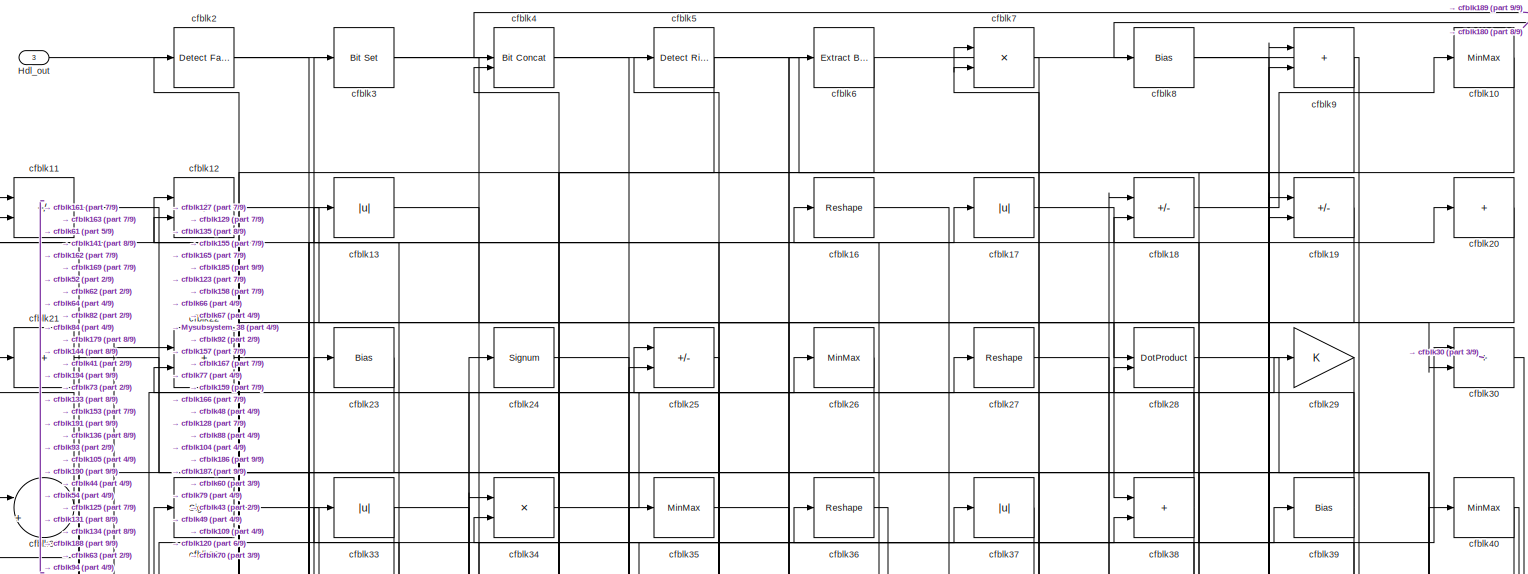
[diagram: root canvas - part 1/9, full width, top band]
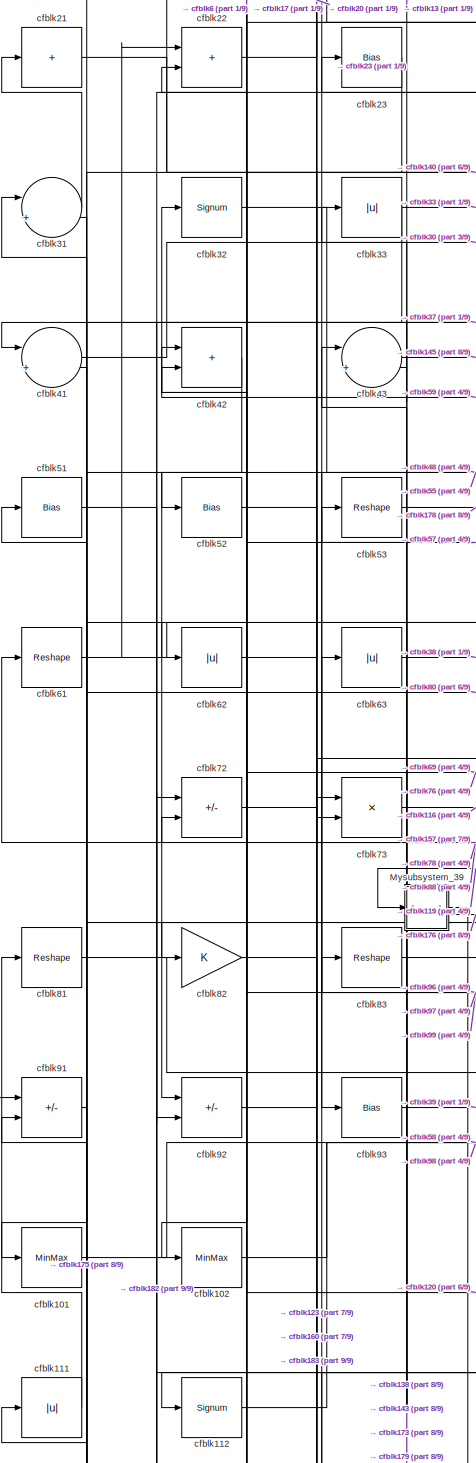
[diagram: root canvas - part 2/9, middle left region]
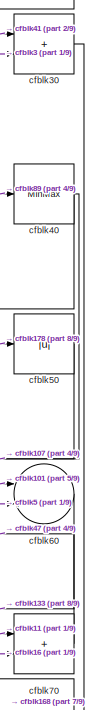
[diagram: root canvas - part 3/9, top right region]
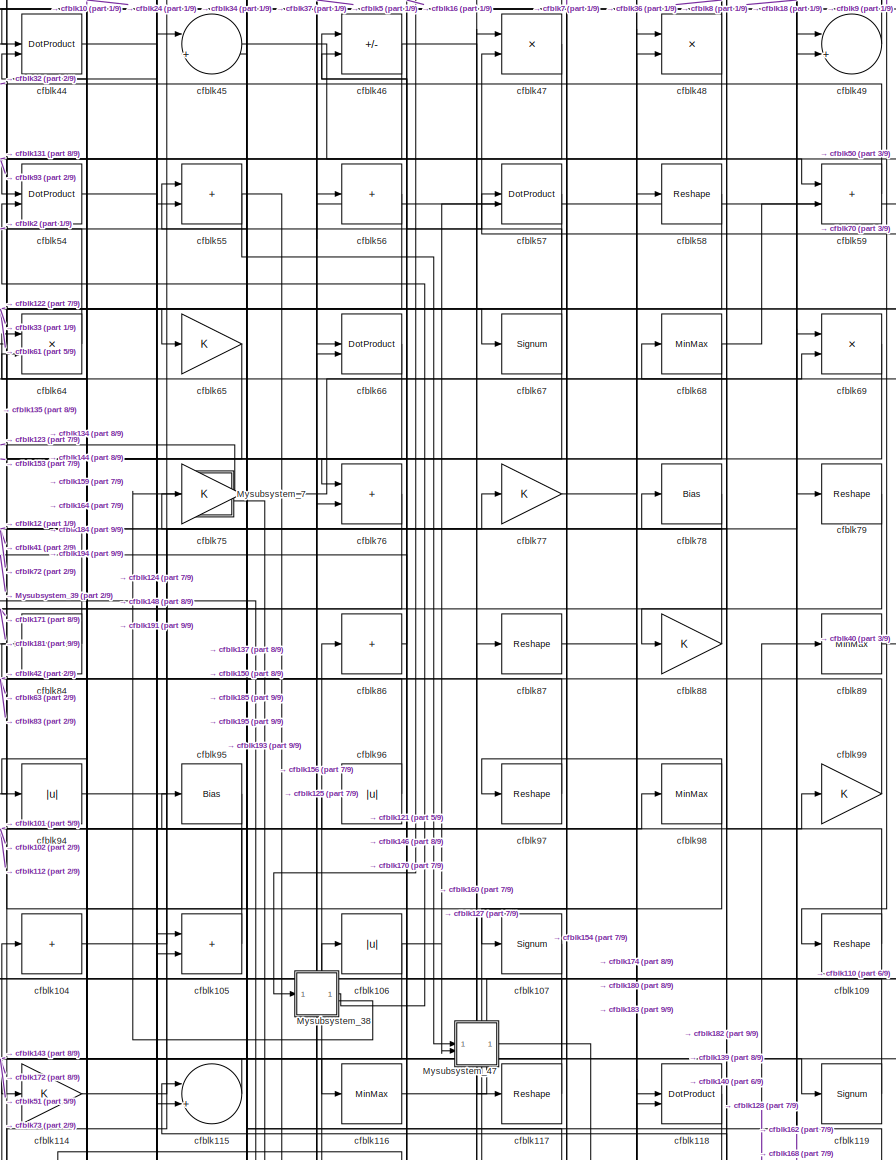
[diagram: root canvas - part 4/9, central region]
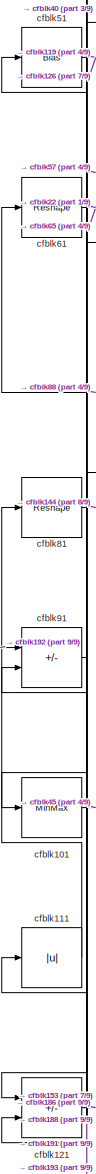
[diagram: root canvas - part 5/9, middle left region]
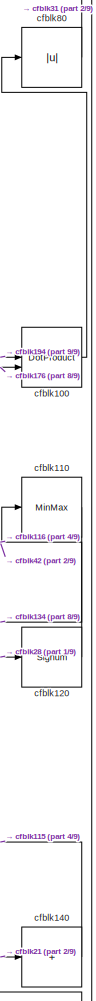
[diagram: root canvas - part 6/9, middle right region]
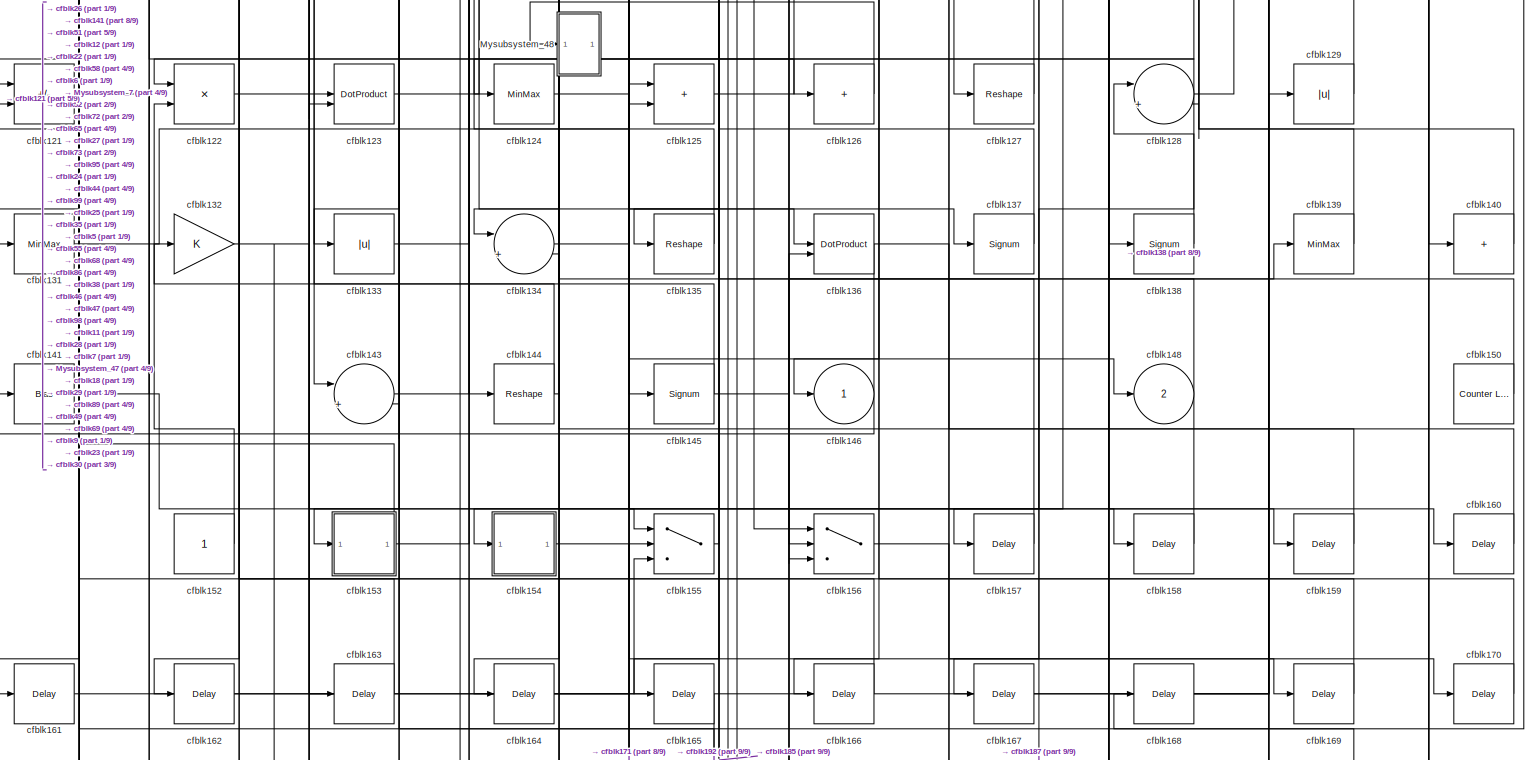
[diagram: root canvas - part 7/9, full width, bottom band]
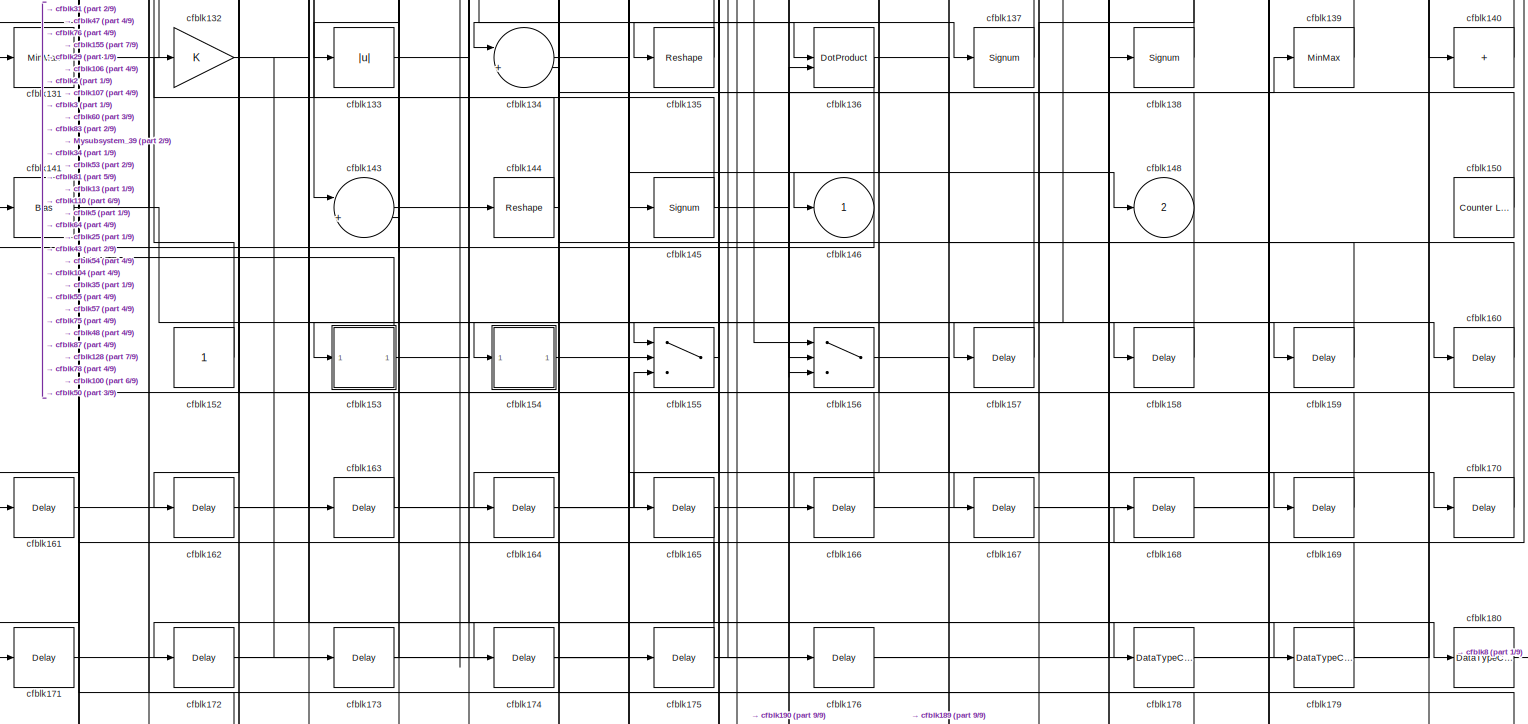
[diagram: root canvas - part 8/9, full width, bottom band]
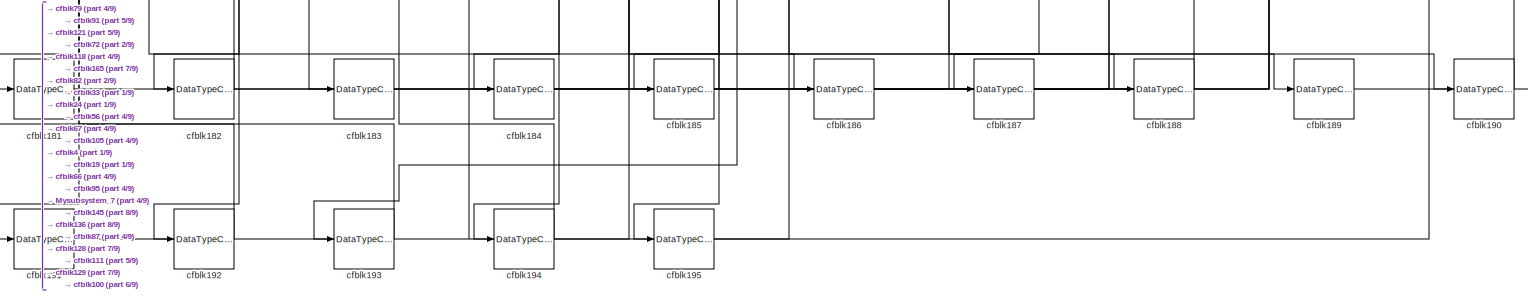
[diagram: root canvas - part 9/9, full width, bottom band]
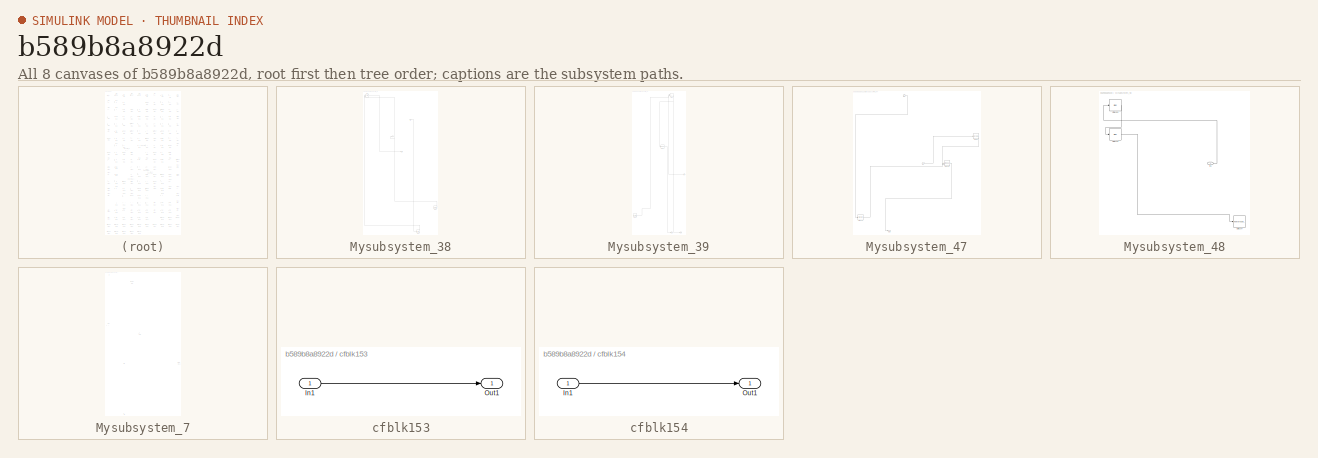
[diagram: thumbnail index - all 8 canvases of the model, root first then tree order]
MODEL slx_b589b8a8922d
KIND model
CONFIG AbsTol = auto
CONFIG EnableMultiTasking = off
CONFIG FixedStep = auto
CONFIG MaxStep = auto
CONFIG MinStep = auto
CONFIG RelTol = 1e-3
CONFIG SampleTimeConstraint = Unconstrained
CONFIG SolverName = VariableStepAuto
CONFIG StartTime = 0.0
CONFIG StopTime = 10.0
BLOCK [Outport] Hdl_out
  OutDataTypeStr = uint8
  Port = 3
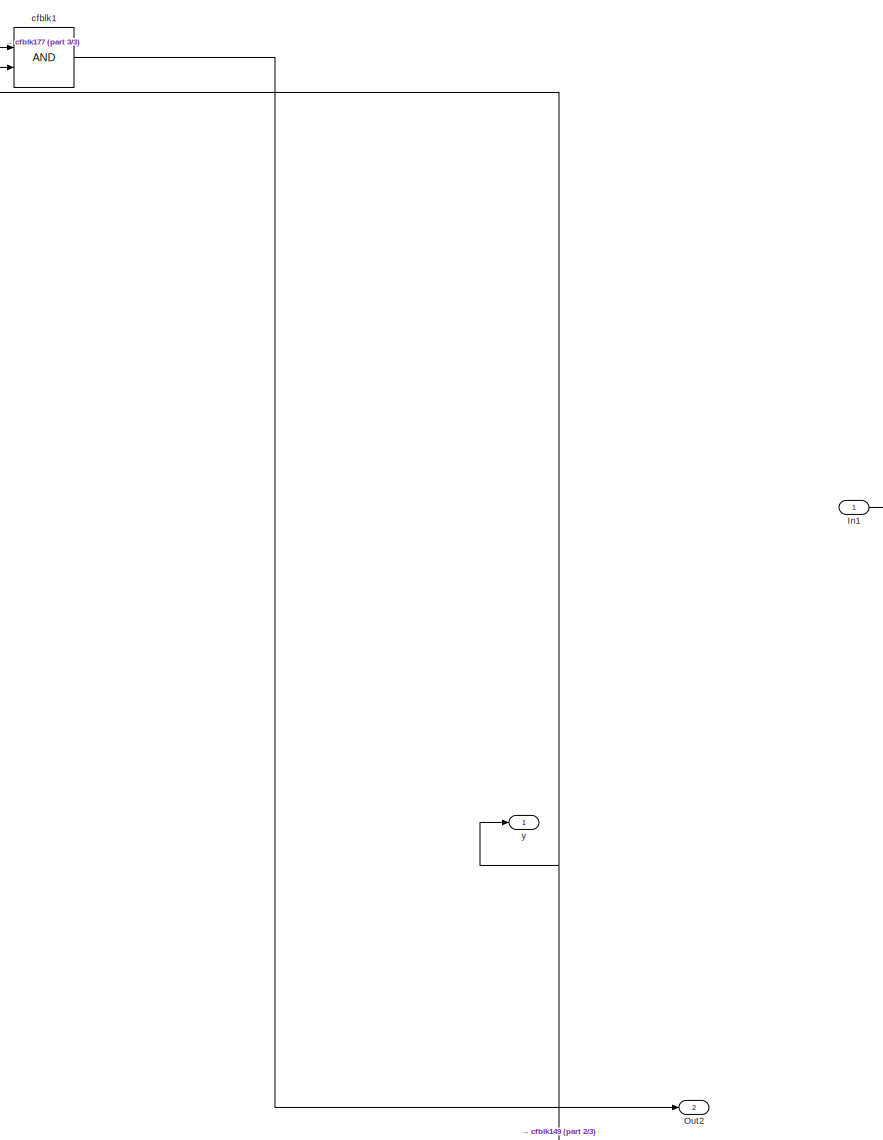
[diagram: Mysubsystem_38 - part 1/3, top center region]
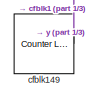
[diagram: Mysubsystem_38 - part 2/3, bottom right region]
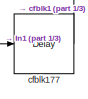
[diagram: Mysubsystem_38 - part 3/3, bottom right region]
BLOCK [SubSystem] Mysubsystem_38
  RTWFcnName = Mysubsystem_38
  RTWFcnNameOpts = User specified
  RTWFileNameOpts = Use function name
  RTWSystemCode = Reusable function
  TreatAsAtomicUnit = on
BLOCK [Inport] Mysubsystem_38/In1
BLOCK [Outport] Mysubsystem_38/Out2
  Port = 2
BLOCK [Logic] Mysubsystem_38/cfblk1
  AllPortsSameDT = off
  OutDataTypeStr = boolean
BLOCK [Reference] Mysubsystem_38/cfblk149  REF=hdlsllib/Sources/Counter
Limited
  SourceBlock = hdlsllib/Sources/Counter\nLimited
  SourceType = Counter Limited
BLOCK [Delay] Mysubsystem_38/cfblk177
  InputPortMap = u0
  SampleTime = 1
BLOCK [Outport] Mysubsystem_38/y
BLOCK [SubSystem] Mysubsystem_39
  RTWFcnName = Mysubsystem_39
  RTWFcnNameOpts = User specified
  RTWFileNameOpts = Use function name
  RTWSystemCode = Reusable function
  TreatAsAtomicUnit = on
BLOCK [Inport] Mysubsystem_39/In1
BLOCK [Outport] Mysubsystem_39/Out1
BLOCK [Outport] Mysubsystem_39/Out2
  Port = 2
BLOCK [Sum] Mysubsystem_39/cfblk15
  IconShape = rectangular
BLOCK [Reference] Mysubsystem_39/cfblk151  REF=hdlsllib/Sources/Counter
Free-Running
  SourceBlock = hdlsllib/Sources/Counter\nFree-Running
  SourceType = Counter Free-Running
BLOCK [Reshape] Mysubsystem_39/cfblk74
BLOCK [SubSystem] Mysubsystem_47
  RTWFcnName = Mysubsystem_47
  RTWFcnNameOpts = User specified
  RTWFileNameOpts = Use function name
  RTWSystemCode = Reusable function
  TreatAsAtomicUnit = on
BLOCK [Inport] Mysubsystem_47/In1
BLOCK [Inport] Mysubsystem_47/In2
  Port = 2
BLOCK [Outport] Mysubsystem_47/Out1
BLOCK [DotProduct] Mysubsystem_47/cfblk108
  OutDataTypeStr = Inherit: Inherit via internal rule
BLOCK [Signum] Mysubsystem_47/cfblk142
BLOCK [Reshape] Mysubsystem_47/cfblk90
BLOCK [SubSystem] Mysubsystem_48
  RTWFcnName = Mysubsystem_48
  RTWFcnNameOpts = User specified
  RTWFileNameOpts = Use function name
  RTWSystemCode = Reusable function
  TreatAsAtomicUnit = on
BLOCK [Inport] Mysubsystem_48/In1
BLOCK [Bias] Mysubsystem_48/cfblk103
  Bias = 0.0
  SaturateOnIntegerOverflow = off
BLOCK [Bias] Mysubsystem_48/cfblk113
  Bias = 0.0
  SaturateOnIntegerOverflow = off
BLOCK [ToWorkspace] Mysubsystem_48/cfblk147
  MaxDataPoints = inf
  SampleTime = -1
  SaveFormat = Timeseries
  VariableName = simout
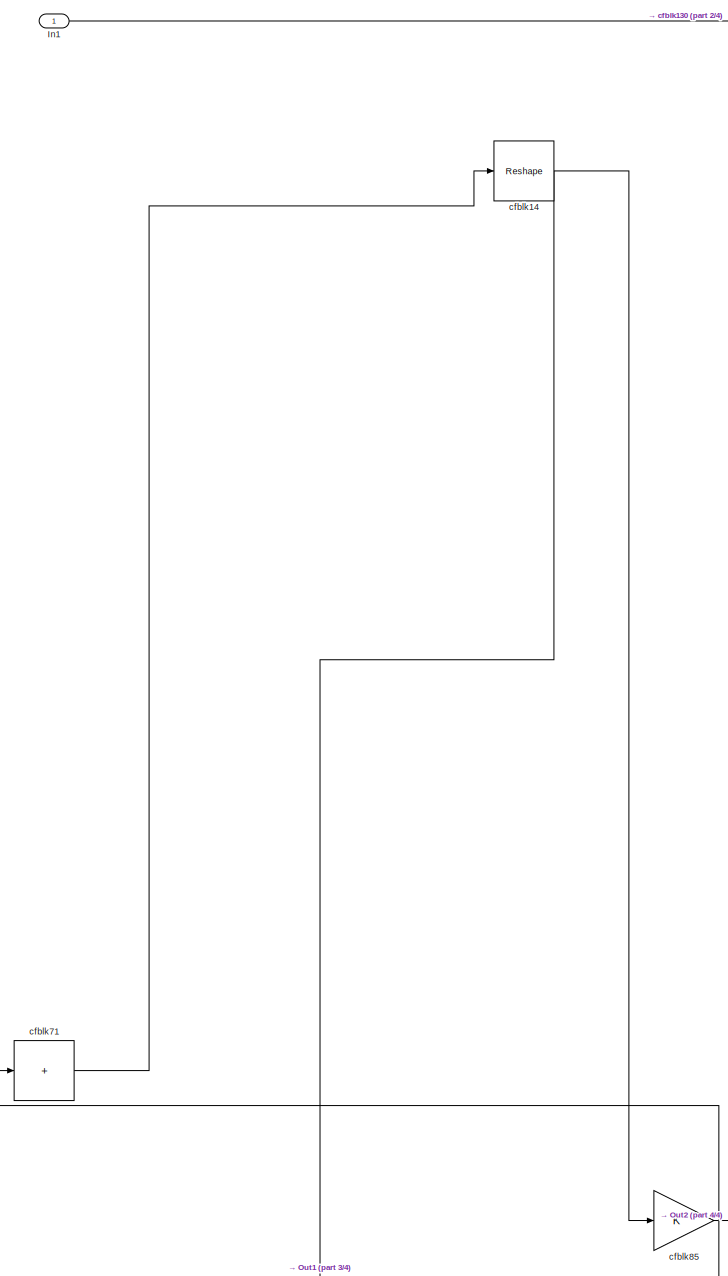
[diagram: Mysubsystem_7 - part 1/4, top left region]
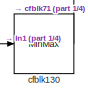
[diagram: Mysubsystem_7 - part 2/4, middle right region]
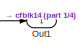
[diagram: Mysubsystem_7 - part 3/4, middle left region]
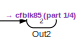
[diagram: Mysubsystem_7 - part 4/4, bottom left region]
BLOCK [SubSystem] Mysubsystem_7
  RTWFcnName = Mysubsystem_7
  RTWFcnNameOpts = User specified
  RTWFileNameOpts = Use function name
  RTWSystemCode = Reusable function
  TreatAsAtomicUnit = on
BLOCK [Inport] Mysubsystem_7/In1
BLOCK [Outport] Mysubsystem_7/Out1
BLOCK [Outport] Mysubsystem_7/Out2
  Port = 2
BLOCK [MinMax] Mysubsystem_7/cfblk130
BLOCK [Reshape] Mysubsystem_7/cfblk14
BLOCK [Sum] Mysubsystem_7/cfblk71
  IconShape = rectangular
  Inputs = +
BLOCK [Gain] Mysubsystem_7/cfblk85
BLOCK [MinMax] cfblk10
  OutDataTypeStr = uint8
BLOCK [DotProduct] cfblk100
  OutDataTypeStr = uint8
BLOCK [MinMax] cfblk101
  OutDataTypeStr = uint8
BLOCK [MinMax] cfblk102
  OutDataTypeStr = uint8
BLOCK [Sum] cfblk104
  IconShape = rectangular
  Inputs = +
  OutDataTypeStr = uint8
BLOCK [Sum] cfblk105
  IconShape = rectangular
  OutDataTypeStr = uint8
BLOCK [Abs] cfblk106
  OutDataTypeStr = uint8
  SaturateOnIntegerOverflow = off
BLOCK [Signum] cfblk107
BLOCK [Reshape] cfblk109
BLOCK [Sum] cfblk11
  IconShape = rectangular
  Inputs = +-
  OutDataTypeStr = uint8
BLOCK [MinMax] cfblk110
  OutDataTypeStr = uint8
BLOCK [Abs] cfblk111
  OutDataTypeStr = uint8
  SaturateOnIntegerOverflow = off
BLOCK [Signum] cfblk112
BLOCK [Gain] cfblk114
  OutDataTypeStr = uint8
BLOCK [Sum] cfblk115
  Inputs = |++
  OutDataTypeStr = uint8
BLOCK [MinMax] cfblk116
  OutDataTypeStr = uint8
BLOCK [Reshape] cfblk117
BLOCK [DotProduct] cfblk118
  OutDataTypeStr = uint8
BLOCK [Signum] cfblk119
BLOCK [Sum] cfblk12
  IconShape = rectangular
  Inputs = +-
  OutDataTypeStr = uint8
BLOCK [Signum] cfblk120
BLOCK [Sum] cfblk121
  IconShape = rectangular
  Inputs = +-
  OutDataTypeStr = uint8
BLOCK [Product] cfblk122
  Inputs = */
  OutDataTypeStr = uint8
  RndMeth = Zero
  SaturateOnIntegerOverflow = on
BLOCK [DotProduct] cfblk123
  OutDataTypeStr = uint8
BLOCK [MinMax] cfblk124
  OutDataTypeStr = uint8
BLOCK [Sum] cfblk125
  IconShape = rectangular
  OutDataTypeStr = uint8
BLOCK [Sum] cfblk126
  IconShape = rectangular
  Inputs = +
  OutDataTypeStr = uint8
BLOCK [Reshape] cfblk127
BLOCK [Sum] cfblk128
  Inputs = |++
  OutDataTypeStr = uint8
BLOCK [Abs] cfblk129
  OutDataTypeStr = uint8
  SaturateOnIntegerOverflow = off
BLOCK [Abs] cfblk13
  OutDataTypeStr = uint8
  SaturateOnIntegerOverflow = off
BLOCK [MinMax] cfblk131
  OutDataTypeStr = uint8
BLOCK [Gain] cfblk132
  OutDataTypeStr = uint8
BLOCK [Abs] cfblk133
  OutDataTypeStr = uint8
  SaturateOnIntegerOverflow = off
BLOCK [Sum] cfblk134
  Inputs = |++
  OutDataTypeStr = uint8
BLOCK [Reshape] cfblk135
BLOCK [DotProduct] cfblk136
  OutDataTypeStr = uint8
BLOCK [Signum] cfblk137
BLOCK [Signum] cfblk138
BLOCK [MinMax] cfblk139
  OutDataTypeStr = uint8
BLOCK [Sum] cfblk140
  IconShape = rectangular
  Inputs = +
  OutDataTypeStr = uint8
BLOCK [Bias] cfblk141
  Bias = 0.0
  SaturateOnIntegerOverflow = off
BLOCK [Sum] cfblk143
  Inputs = |++
  OutDataTypeStr = uint8
BLOCK [Reshape] cfblk144
BLOCK [Signum] cfblk145
BLOCK [Outport] cfblk146
  OutDataTypeStr = uint8
  VectorParamsAs1DForOutWhenUnconnected = off
BLOCK [Outport] cfblk148
  OutDataTypeStr = uint8
  Port = 2
  VectorParamsAs1DForOutWhenUnconnected = off
BLOCK [Reference] cfblk150  REF=hdlsllib/Sources/Counter
Limited
  SourceBlock = hdlsllib/Sources/Counter\nLimited
  SourceType = Counter Limited
BLOCK [Constant] cfblk152
  OutDataTypeStr = uint8
  SampleTime = -1
BLOCK [SubSystem] cfblk153
  LibrarySourceBlock = hdlsllib/Ports &\nSubsystems/Subsystem
BLOCK [Inport] cfblk153/In1
BLOCK [Outport] cfblk153/Out1
BLOCK [SubSystem] cfblk154
  LibrarySourceBlock = hdlsllib/Ports &\nSubsystems/Subsystem
BLOCK [Inport] cfblk154/In1
BLOCK [Outport] cfblk154/Out1
BLOCK [Switch] cfblk155
  InputSameDT = off
  OutDataTypeStr = uint8
  SaturateOnIntegerOverflow = off
BLOCK [Switch] cfblk156
  InputSameDT = off
  OutDataTypeStr = uint8
  SaturateOnIntegerOverflow = off
BLOCK [Delay] cfblk157
  InputPortMap = u0
  SampleTime = 1
BLOCK [Delay] cfblk158
  InputPortMap = u0
  SampleTime = 1
BLOCK [Delay] cfblk159
  InputPortMap = u0
  SampleTime = 1
BLOCK [Reshape] cfblk16
BLOCK [Delay] cfblk160
  InputPortMap = u0
  SampleTime = 1
BLOCK [Delay] cfblk161
  InputPortMap = u0
  SampleTime = 1
BLOCK [Delay] cfblk162
  InputPortMap = u0
  SampleTime = 1
BLOCK [Delay] cfblk163
  InputPortMap = u0
  SampleTime = 1
BLOCK [Delay] cfblk164
  InputPortMap = u0
  SampleTime = 1
BLOCK [Delay] cfblk165
  InputPortMap = u0
  SampleTime = 1
BLOCK [Delay] cfblk166
  InputPortMap = u0
  SampleTime = 1
BLOCK [Delay] cfblk167
  InputPortMap = u0
  SampleTime = 1
BLOCK [Delay] cfblk168
  InputPortMap = u0
  SampleTime = 1
BLOCK [Delay] cfblk169
  InputPortMap = u0
  SampleTime = 1
BLOCK [Abs] cfblk17
  OutDataTypeStr = uint8
  SaturateOnIntegerOverflow = off
BLOCK [Delay] cfblk170
  InputPortMap = u0
  SampleTime = 1
BLOCK [Delay] cfblk171
  InputPortMap = u0
  SampleTime = 1
BLOCK [Delay] cfblk172
  InputPortMap = u0
  SampleTime = 1
BLOCK [Delay] cfblk173
  InputPortMap = u0
  SampleTime = 1
BLOCK [Delay] cfblk174
  InputPortMap = u0
  SampleTime = 1
BLOCK [Delay] cfblk175
  InputPortMap = u0
  SampleTime = 1
BLOCK [Delay] cfblk176
  InputPortMap = u0
  SampleTime = 1
BLOCK [DataTypeConversion] cfblk178
  OutDataTypeStr = uint8
  RndMeth = Floor
  SaturateOnIntegerOverflow = off
BLOCK [DataTypeConversion] cfblk179
  OutDataTypeStr = uint8
  RndMeth = Floor
  SaturateOnIntegerOverflow = off
BLOCK [Sum] cfblk18
  IconShape = rectangular
  Inputs = +-
  OutDataTypeStr = uint8
BLOCK [DataTypeConversion] cfblk180
  OutDataTypeStr = uint8
  RndMeth = Floor
  SaturateOnIntegerOverflow = off
BLOCK [DataTypeConversion] cfblk181
  OutDataTypeStr = uint8
  RndMeth = Floor
  SaturateOnIntegerOverflow = off
BLOCK [DataTypeConversion] cfblk182
  OutDataTypeStr = uint8
  RndMeth = Floor
  SaturateOnIntegerOverflow = off
BLOCK [DataTypeConversion] cfblk183
  OutDataTypeStr = uint8
  RndMeth = Floor
  SaturateOnIntegerOverflow = off
BLOCK [DataTypeConversion] cfblk184
  OutDataTypeStr = uint8
  RndMeth = Floor
  SaturateOnIntegerOverflow = off
BLOCK [DataTypeConversion] cfblk185
  OutDataTypeStr = uint8
  RndMeth = Floor
  SaturateOnIntegerOverflow = off
BLOCK [DataTypeConversion] cfblk186
  OutDataTypeStr = uint8
  RndMeth = Floor
  SaturateOnIntegerOverflow = off
BLOCK [DataTypeConversion] cfblk187
  OutDataTypeStr = uint8
  RndMeth = Floor
  SaturateOnIntegerOverflow = off
BLOCK [DataTypeConversion] cfblk188
  OutDataTypeStr = uint8
  RndMeth = Floor
  SaturateOnIntegerOverflow = off
BLOCK [DataTypeConversion] cfblk189
  OutDataTypeStr = uint8
  RndMeth = Floor
  SaturateOnIntegerOverflow = off
BLOCK [Sum] cfblk19
  IconShape = rectangular
  Inputs = +-
  OutDataTypeStr = uint8
BLOCK [DataTypeConversion] cfblk190
  OutDataTypeStr = uint8
  RndMeth = Floor
  SaturateOnIntegerOverflow = off
BLOCK [DataTypeConversion] cfblk191
  OutDataTypeStr = uint8
  RndMeth = Floor
  SaturateOnIntegerOverflow = off
BLOCK [DataTypeConversion] cfblk192
  OutDataTypeStr = uint8
  RndMeth = Floor
  SaturateOnIntegerOverflow = off
BLOCK [DataTypeConversion] cfblk193
  OutDataTypeStr = uint8
  RndMeth = Floor
  SaturateOnIntegerOverflow = off
BLOCK [DataTypeConversion] cfblk194
  OutDataTypeStr = uint8
  RndMeth = Floor
  SaturateOnIntegerOverflow = off
BLOCK [DataTypeConversion] cfblk195
  OutDataTypeStr = uint8
  RndMeth = Floor
  SaturateOnIntegerOverflow = off
BLOCK [Reference] cfblk2  REF=hdlsllib/Logic and Bit
Operations/Detect Fall
Nonpositive
  SourceBlock = hdlsllib/Logic and Bit\nOperations/Detect Fall\nNonpositive
  SourceType = Detect Fall Nonpositive
BLOCK [Sum] cfblk20
  IconShape = rectangular
  Inputs = +
  OutDataTypeStr = uint8
BLOCK [Sum] cfblk21
  IconShape = rectangular
  Inputs = +
  OutDataTypeStr = uint8
BLOCK [Sum] cfblk22
  IconShape = rectangular
  OutDataTypeStr = uint8
BLOCK [Bias] cfblk23
  Bias = 0.0
  SaturateOnIntegerOverflow = off
BLOCK [Signum] cfblk24
BLOCK [Sum] cfblk25
  IconShape = rectangular
  Inputs = +-
  OutDataTypeStr = uint8
BLOCK [MinMax] cfblk26
  OutDataTypeStr = uint8
BLOCK [Reshape] cfblk27
BLOCK [DotProduct] cfblk28
  OutDataTypeStr = uint8
BLOCK [Gain] cfblk29
  OutDataTypeStr = uint8
BLOCK [Reference] cfblk3  REF=simulink/Logic and Bit
Operations/Bit Set
  LibrarySourceBlock = hdlsllib/Logic and Bit\nOperations/Bit Set
  SourceBlock = simulink/Logic and Bit\nOperations/Bit Set
  SourceType = Bit Set
BLOCK [Sum] cfblk30
  IconShape = rectangular
  OutDataTypeStr = uint8
BLOCK [Sum] cfblk31
  Inputs = |++
  OutDataTypeStr = uint8
BLOCK [Signum] cfblk32
BLOCK [Abs] cfblk33
  OutDataTypeStr = uint8
  SaturateOnIntegerOverflow = off
BLOCK [Product] cfblk34
  Inputs = */
  OutDataTypeStr = uint8
  RndMeth = Zero
  SaturateOnIntegerOverflow = on
BLOCK [MinMax] cfblk35
  OutDataTypeStr = uint8
BLOCK [Reshape] cfblk36
BLOCK [Abs] cfblk37
  OutDataTypeStr = uint8
  SaturateOnIntegerOverflow = off
BLOCK [Sum] cfblk38
  IconShape = rectangular
  OutDataTypeStr = uint8
BLOCK [Bias] cfblk39
  Bias = 0.0
  SaturateOnIntegerOverflow = off
BLOCK [Reference] cfblk4  REF=hdlsllib/Logic and Bit
Operations/Bit Concat
  SourceBlock = hdlsllib/Logic and Bit\nOperations/Bit Concat
  SourceType = Bit Concat
BLOCK [MinMax] cfblk40
  OutDataTypeStr = uint8
BLOCK [Sum] cfblk41
  Inputs = |++
  OutDataTypeStr = uint8
BLOCK [Sum] cfblk42
  IconShape = rectangular
  OutDataTypeStr = uint8
BLOCK [Sum] cfblk43
  Inputs = |++
  OutDataTypeStr = uint8
BLOCK [DotProduct] cfblk44
  OutDataTypeStr = uint8
BLOCK [Sum] cfblk45
  Inputs = |++
  OutDataTypeStr = uint8
BLOCK [Sum] cfblk46
  IconShape = rectangular
  Inputs = +-
  OutDataTypeStr = uint8
BLOCK [Product] cfblk47
  Inputs = */
  OutDataTypeStr = uint8
  RndMeth = Zero
  SaturateOnIntegerOverflow = on
BLOCK [Product] cfblk48
  Inputs = */
  OutDataTypeStr = uint8
  RndMeth = Zero
  SaturateOnIntegerOverflow = on
BLOCK [Sum] cfblk49
  Inputs = |++
  OutDataTypeStr = uint8
BLOCK [Reference] cfblk5  REF=hdlsllib/Logic and Bit
Operations/Detect Rise
Nonnegative
  SourceBlock = hdlsllib/Logic and Bit\nOperations/Detect Rise\nNonnegative
  SourceType = Detect Rise Nonnegative
BLOCK [Abs] cfblk50
  OutDataTypeStr = uint8
  SaturateOnIntegerOverflow = off
BLOCK [Bias] cfblk51
  Bias = 0.0
  SaturateOnIntegerOverflow = off
BLOCK [Bias] cfblk52
  Bias = 0.0
  SaturateOnIntegerOverflow = off
BLOCK [Reshape] cfblk53
BLOCK [DotProduct] cfblk54
  OutDataTypeStr = uint8
BLOCK [Sum] cfblk55
  IconShape = rectangular
  OutDataTypeStr = uint8
BLOCK [Sum] cfblk56
  IconShape = rectangular
  Inputs = +
  OutDataTypeStr = uint8
BLOCK [DotProduct] cfblk57
  OutDataTypeStr = uint8
BLOCK [Reshape] cfblk58
BLOCK [Sum] cfblk59
  IconShape = rectangular
  OutDataTypeStr = uint8
BLOCK [Reference] cfblk6  REF=simulink/Logic and Bit
Operations/Extract Bits
  LibrarySourceBlock = hdlsllib/Logic and Bit\nOperations/Extract Bits
  SourceBlock = simulink/Logic and Bit\nOperations/Extract Bits
  SourceType = Extract Bits
BLOCK [Sum] cfblk60
  Inputs = |++
  OutDataTypeStr = uint8
BLOCK [Reshape] cfblk61
BLOCK [Abs] cfblk62
  OutDataTypeStr = uint8
  SaturateOnIntegerOverflow = off
BLOCK [Abs] cfblk63
  OutDataTypeStr = uint8
  SaturateOnIntegerOverflow = off
BLOCK [Product] cfblk64
  Inputs = */
  OutDataTypeStr = uint8
  RndMeth = Zero
  SaturateOnIntegerOverflow = on
BLOCK [Gain] cfblk65
  OutDataTypeStr = uint8
BLOCK [DotProduct] cfblk66
  OutDataTypeStr = uint8
BLOCK [Signum] cfblk67
BLOCK [MinMax] cfblk68
  OutDataTypeStr = uint8
BLOCK [Product] cfblk69
  Inputs = */
  OutDataTypeStr = uint8
  RndMeth = Zero
  SaturateOnIntegerOverflow = on
BLOCK [Product] cfblk7
  Inputs = */
  OutDataTypeStr = uint8
  RndMeth = Zero
  SaturateOnIntegerOverflow = on
BLOCK [Sum] cfblk70
  IconShape = rectangular
  OutDataTypeStr = uint8
BLOCK [Sum] cfblk72
  IconShape = rectangular
  Inputs = +-
  OutDataTypeStr = uint8
BLOCK [Product] cfblk73
  Inputs = */
  OutDataTypeStr = uint8
  RndMeth = Zero
  SaturateOnIntegerOverflow = on
BLOCK [Gain] cfblk75
  OutDataTypeStr = uint8
BLOCK [Sum] cfblk76
  IconShape = rectangular
  OutDataTypeStr = uint8
BLOCK [Gain] cfblk77
  OutDataTypeStr = uint8
BLOCK [Bias] cfblk78
  Bias = 0.0
  SaturateOnIntegerOverflow = off
BLOCK [Reshape] cfblk79
BLOCK [Bias] cfblk8
  Bias = 0.0
  SaturateOnIntegerOverflow = off
BLOCK [Abs] cfblk80
  OutDataTypeStr = uint8
  SaturateOnIntegerOverflow = off
BLOCK [Reshape] cfblk81
BLOCK [Gain] cfblk82
  OutDataTypeStr = uint8
BLOCK [Reshape] cfblk83
BLOCK [MinMax] cfblk84
  OutDataTypeStr = uint8
BLOCK [Sum] cfblk86
  IconShape = rectangular
  Inputs = +
  OutDataTypeStr = uint8
BLOCK [Reshape] cfblk87
BLOCK [Gain] cfblk88
  OutDataTypeStr = uint8
BLOCK [MinMax] cfblk89
  OutDataTypeStr = uint8
BLOCK [Sum] cfblk9
  IconShape = rectangular
  OutDataTypeStr = uint8
BLOCK [Sum] cfblk91
  IconShape = rectangular
  Inputs = +-
  OutDataTypeStr = uint8
BLOCK [Sum] cfblk92
  IconShape = rectangular
  Inputs = +-
  OutDataTypeStr = uint8
BLOCK [Bias] cfblk93
  Bias = 0.0
  SaturateOnIntegerOverflow = off
BLOCK [Abs] cfblk94
  OutDataTypeStr = uint8
  SaturateOnIntegerOverflow = off
BLOCK [Bias] cfblk95
  Bias = 0.0
  SaturateOnIntegerOverflow = off
BLOCK [Abs] cfblk96
  OutDataTypeStr = uint8
  SaturateOnIntegerOverflow = off
BLOCK [Reshape] cfblk97
BLOCK [MinMax] cfblk98
  OutDataTypeStr = uint8
BLOCK [Gain] cfblk99
  OutDataTypeStr = uint8
LINE Mysubsystem_38/In1:1 -> Mysubsystem_38/cfblk177:1
NET Mysubsystem_38/cfblk149:1 -> Mysubsystem_38/cfblk1:2, Mysubsystem_38/y:1
LINE Mysubsystem_38/cfblk177:1 -> Mysubsystem_38/cfblk1:1
LINE Mysubsystem_38/cfblk1:1 -> Mysubsystem_38/Out2:1
LINE Mysubsystem_38:1 -> cfblk54:2
LINE Mysubsystem_38:2 -> Mysubsystem_7:1
LINE Mysubsystem_39/In1:1 -> Mysubsystem_39/cfblk15:2
LINE Mysubsystem_39/cfblk151:1 -> Mysubsystem_39/cfblk15:1
NET Mysubsystem_39/cfblk15:1 -> Mysubsystem_39/Out2:1, Mysubsystem_39/cfblk74:1
LINE Mysubsystem_39/cfblk74:1 -> Mysubsystem_39/Out1:1
LINE Mysubsystem_39:1 -> cfblk175:1
LINE Mysubsystem_39:2 -> cfblk176:1
LINE Mysubsystem_47/In1:1 -> Mysubsystem_47/cfblk142:1
LINE Mysubsystem_47/In2:1 -> Mysubsystem_47/cfblk90:1
LINE Mysubsystem_47/cfblk108:1 -> Mysubsystem_47/Out1:1
LINE Mysubsystem_47/cfblk142:1 -> Mysubsystem_47/cfblk108:1
LINE Mysubsystem_47/cfblk90:1 -> Mysubsystem_47/cfblk108:2
LINE Mysubsystem_47:1 -> cfblk154:1
LINE Mysubsystem_48/In1:1 -> Mysubsystem_48/cfblk103:1
LINE Mysubsystem_48/cfblk103:1 -> Mysubsystem_48/cfblk113:1
LINE Mysubsystem_48/cfblk113:1 -> Mysubsystem_48/cfblk147:1
LINE Mysubsystem_7/In1:1 -> Mysubsystem_7/cfblk130:1
LINE Mysubsystem_7/cfblk130:1 -> Mysubsystem_7/cfblk71:1
NET Mysubsystem_7/cfblk14:1 -> Mysubsystem_7/Out1:1, Mysubsystem_7/cfblk85:1
LINE Mysubsystem_7/cfblk71:1 -> Mysubsystem_7/cfblk14:1
LINE Mysubsystem_7/cfblk85:1 -> Mysubsystem_7/Out2:1
LINE Mysubsystem_7:1 -> cfblk123:2
LINE Mysubsystem_7:2 -> cfblk193:1
LINE cfblk100:1 -> cfblk80:1
LINE cfblk101:1 -> cfblk45:1
LINE cfblk102:1 -> cfblk58:1
LINE cfblk104:1 -> cfblk9:1
LINE cfblk105:1 -> cfblk34:2
NET cfblk106:1 -> Mysubsystem_47:2, cfblk172:1, cfblk57:2
LINE cfblk107:1 -> cfblk143:1
LINE cfblk109:1 -> cfblk68:1
LINE cfblk10:1 -> cfblk44:1
LINE cfblk110:1 -> cfblk134:1
LINE cfblk111:1 -> cfblk81:1
NET cfblk112:1 -> cfblk57:1, cfblk98:1
LINE cfblk114:1 -> cfblk77:1
LINE cfblk115:1 -> cfblk114:1
LINE cfblk116:1 -> cfblk110:1
LINE cfblk117:1 -> cfblk84:1
LINE cfblk118:1 -> cfblk182:1
NET cfblk119:1 -> Mysubsystem_39:1, cfblk96:1
LINE cfblk11:1 -> cfblk70:1
LINE cfblk120:1 -> cfblk42:1
LINE cfblk121:1 -> cfblk186:1
LINE cfblk122:1 -> cfblk163:1
LINE cfblk123:1 -> cfblk6:1
LINE cfblk124:1 -> cfblk99:1
LINE cfblk125:1 -> cfblk86:1
LINE cfblk126:1 -> Mysubsystem_48:1
LINE cfblk127:1 -> cfblk11:1
NET cfblk128:1 -> cfblk124:1, cfblk187:1, cfblk89:1
LINE cfblk129:1 -> cfblk23:1
LINE cfblk12:1 -> cfblk66:1
LINE cfblk131:1 -> cfblk35:1
NET cfblk132:1 -> cfblk173:1, cfblk174:1
LINE cfblk133:1 -> cfblk34:1
NET cfblk134:1 -> cfblk137:1, cfblk25:2, cfblk64:2
LINE cfblk135:1 -> cfblk104:1
NET cfblk136:1 -> cfblk141:1, cfblk189:1
LINE cfblk137:1 -> cfblk75:1
LINE cfblk138:1 -> cfblk128:1
LINE cfblk139:1 -> cfblk78:1
LINE cfblk13:1 -> cfblk136:1
LINE cfblk140:1 -> cfblk115:1
NET cfblk141:1 -> cfblk155:1, cfblk29:1
LINE cfblk143:1 -> cfblk106:1
NET cfblk144:1 -> cfblk3:1, cfblk64:1
NET cfblk145:1 -> cfblk132:1, cfblk139:1, cfblk190:1
LINE cfblk150:1 -> cfblk55:1
LINE cfblk152:1 -> cfblk122:2
LINE cfblk153/In1:1 -> cfblk153/Out1:1
NET cfblk153:1 -> cfblk121:2, cfblk27:1
LINE cfblk154/In1:1 -> cfblk154/Out1:1
LINE cfblk154:1 -> cfblk169:1
LINE cfblk155:1 -> cfblk5:1
LINE cfblk156:1 -> cfblk170:1
LINE cfblk157:1 -> cfblk73:1
LINE cfblk158:1 -> cfblk18:1
LINE cfblk159:1 -> cfblk44:2
LINE cfblk160:1 -> cfblk47:1
LINE cfblk161:1 -> cfblk125:1
LINE cfblk162:1 -> cfblk69:1
LINE cfblk163:1 -> cfblk11:2
LINE cfblk164:1 -> cfblk155:3
LINE cfblk165:1 -> cfblk192:1
LINE cfblk166:1 -> cfblk22:2
LINE cfblk167:1 -> cfblk9:2
LINE cfblk168:1 -> cfblk49:1
LINE cfblk169:1 -> cfblk12:2
LINE cfblk16:1 -> cfblk70:2
LINE cfblk170:1 -> cfblk46:2
LINE cfblk171:1 -> cfblk155:2
LINE cfblk172:1 -> cfblk136:2
LINE cfblk173:1 -> cfblk43:1
LINE cfblk174:1 -> cfblk48:2
LINE cfblk175:1 -> cfblk31:1
LINE cfblk176:1 -> cfblk100:2
LINE cfblk178:1 -> cfblk50:1
LINE cfblk179:1 -> cfblk53:1
LINE cfblk17:1 -> cfblk38:1
LINE cfblk180:1 -> cfblk8:1
LINE cfblk181:1 -> cfblk87:1
NET cfblk182:1 -> cfblk105:2, cfblk72:1
LINE cfblk183:1 -> cfblk118:1
LINE cfblk184:1 -> cfblk118:2
NET cfblk185:1 -> cfblk129:1, cfblk95:1
LINE cfblk186:1 -> cfblk19:1
LINE cfblk187:1 -> cfblk19:2
LINE cfblk188:1 -> cfblk111:1
LINE cfblk189:1 -> cfblk4:1
LINE cfblk18:1 -> cfblk10:1
LINE cfblk190:1 -> cfblk4:2
NET cfblk191:1 -> cfblk105:1, cfblk24:1
LINE cfblk192:1 -> cfblk91:1
LINE cfblk193:1 -> cfblk91:2
NET cfblk194:1 -> cfblk100:1, cfblk33:1
LINE cfblk195:1 -> cfblk56:1
LINE cfblk19:1 -> cfblk185:1
LINE cfblk20:1 -> cfblk82:1
NET cfblk21:1 -> cfblk140:1, cfblk73:2
LINE cfblk22:1 -> cfblk28:1
LINE cfblk23:1 -> cfblk52:1
NET cfblk24:1 -> cfblk125:2, cfblk54:1
LINE cfblk25:1 -> cfblk165:1
LINE cfblk26:1 -> cfblk161:1
LINE cfblk27:1 -> cfblk159:1
NET cfblk28:1 -> cfblk120:1, cfblk167:1
LINE cfblk29:1 -> cfblk128:2
LINE cfblk2:1 -> cfblk179:1
LINE cfblk30:1 -> cfblk168:1
LINE cfblk31:1 -> cfblk21:1
NET cfblk32:1 -> cfblk55:2, cfblk76:2
NET cfblk33:1 -> cfblk41:1, cfblk67:1
LINE cfblk34:1 -> cfblk26:1
NET cfblk35:1 -> cfblk135:1, cfblk158:1
LINE cfblk36:1 -> Mysubsystem_38:1
LINE cfblk37:1 -> cfblk92:2
NET cfblk38:1 -> cfblk166:1, cfblk25:1
NET cfblk39:1 -> cfblk28:2, cfblk43:2
LINE cfblk3:1 -> cfblk30:2
NET cfblk40:1 -> cfblk101:1, cfblk60:1
LINE cfblk41:1 -> cfblk30:1
LINE cfblk42:1 -> cfblk92:1
LINE cfblk43:1 -> cfblk145:1
NET cfblk44:1 -> cfblk115:2, cfblk156:3
LINE cfblk45:1 -> cfblk59:1
NET cfblk46:1 -> cfblk117:1, cfblk94:1
LINE cfblk47:1 -> cfblk131:1
NET cfblk48:1 -> cfblk36:1, cfblk93:1
LINE cfblk49:1 -> cfblk18:2
LINE cfblk4:1 -> cfblk188:1
LINE cfblk50:1 -> cfblk107:1
NET cfblk51:1 -> cfblk119:1, cfblk126:1
NET cfblk52:1 -> cfblk102:1, cfblk123:1
LINE cfblk53:1 -> cfblk178:1
LINE cfblk54:1 -> cfblk148:1
NET cfblk55:1 -> Mysubsystem_47:1, cfblk156:1
LINE cfblk56:1 -> cfblk194:1
NET cfblk57:1 -> cfblk121:1, cfblk146:1, cfblk76:1
LINE cfblk58:1 -> cfblk122:1
LINE cfblk59:1 -> cfblk32:1
NET cfblk5:1 -> cfblk134:2, cfblk60:2, cfblk79:1
LINE cfblk60:1 -> cfblk133:1
NET cfblk61:1 -> cfblk22:1, cfblk65:1
LINE cfblk62:1 -> cfblk20:1
LINE cfblk63:1 -> cfblk38:2
LINE cfblk64:1 -> cfblk2:1
LINE cfblk65:1 -> cfblk153:1
LINE cfblk66:1 -> cfblk195:1
NET cfblk67:1 -> cfblk16:1, cfblk184:1
NET cfblk68:1 -> cfblk156:2, cfblk59:2
LINE cfblk69:1 -> cfblk112:1
NET cfblk6:1 -> cfblk162:1, cfblk62:1
LINE cfblk70:1 -> cfblk47:2
LINE cfblk72:1 -> cfblk160:1
NET cfblk73:1 -> cfblk116:1, cfblk13:1
LINE cfblk75:1 -> cfblk48:1
LINE cfblk76:1 -> cfblk171:1
NET cfblk77:1 -> cfblk69:2, cfblk7:1, cfblk7:2
LINE cfblk78:1 -> cfblk72:2
LINE cfblk79:1 -> cfblk181:1
LINE cfblk7:1 -> cfblk157:1
LINE cfblk80:1 -> cfblk31:2
NET cfblk81:1 -> cfblk144:1, cfblk51:1
LINE cfblk82:1 -> cfblk183:1
NET cfblk83:1 -> cfblk138:1, cfblk143:2
LINE cfblk84:1 -> cfblk12:1
LINE cfblk86:1 -> cfblk46:1
LINE cfblk87:1 -> cfblk180:1
NET cfblk88:1 -> cfblk41:2, cfblk61:1
LINE cfblk89:1 -> cfblk40:1
LINE cfblk8:1 -> cfblk49:2
LINE cfblk91:1 -> cfblk191:1
LINE cfblk92:1 -> cfblk17:1
LINE cfblk93:1 -> cfblk39:1
NET cfblk94:1 -> cfblk37:1, cfblk66:2
LINE cfblk95:1 -> cfblk164:1
LINE cfblk96:1 -> cfblk42:2
NET cfblk97:1 -> cfblk45:2, cfblk83:1
NET cfblk98:1 -> cfblk127:1, cfblk97:1
LINE cfblk99:1 -> cfblk63:1
NET cfblk9:1 -> Hdl_out:1, cfblk109:1, cfblk88:1
note: NET lines group one-source signal fan-out (src -> all destinations, sorted); 1:1 wires keep LINE
